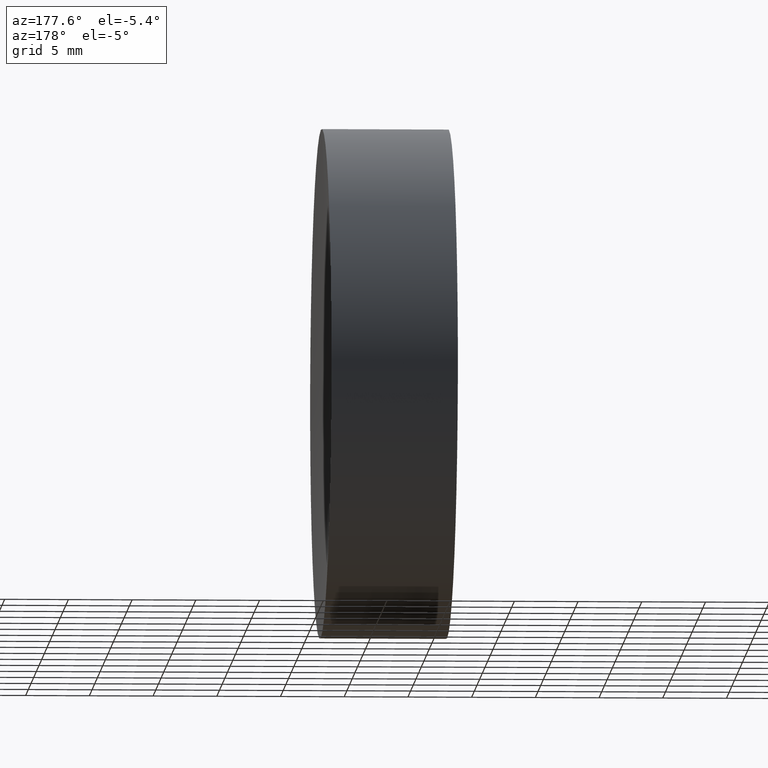
[diagram: clean part render]
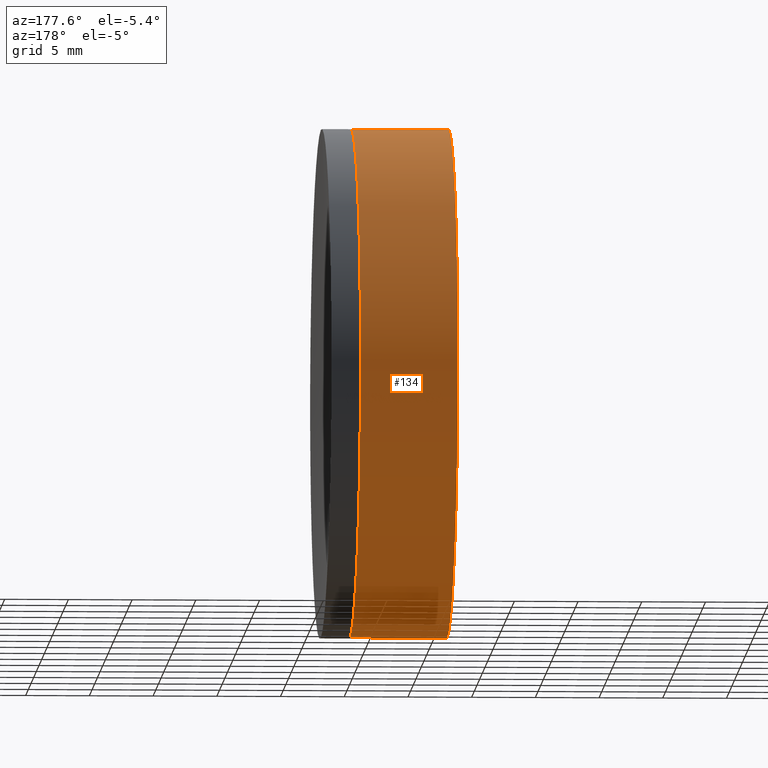
[diagram: same view with one face highlighted and labeled with its STEP entity id]
A machine part, auxiliary view. The second image highlights one B-rep face of the part: STEP entity #134.
In plain terms, the highlighted cylindrical surface (partial cylindrical patch) has radius 20 mm, axis along (-1, -0, 0).
Its self-contained STEP definition (entity closure, byte-faithful):
#8 = CYLINDRICAL_SURFACE ( 'NONE', #241, 20.00000000000004600 ) ;
#10 = ORIENTED_EDGE ( 'NONE', *, *, #252, .F. ) ;
#22 = CARTESIAN_POINT ( 'NONE',  ( -0.8160621761658076700, 2.449293598294712000E-015, -20.00000000000004600 ) ) ;
#30 = CARTESIAN_POINT ( 'NONE',  ( 243.5932381383219400, 0.0000000000000000000, 19.99999999999998200 ) ) ;
#33 = DIRECTION ( 'NONE',  ( -1.000000000000000000, -0.0000000000000000000, 1.836970198721029400E-016 ) ) ;
#42 = EDGE_CURVE ( 'NONE', #73, #250, #43, .T. ) ;
#43 = CIRCLE ( 'NONE', #334, 20.00000000000004600 ) ;
#47 = DIRECTION ( 'NONE',  ( -1.000000000000000000, -0.0000000000000000000, 1.836970198721029400E-016 ) ) ;
#61 = VECTOR ( 'NONE', #335, 1000.000000000000000 ) ;
#62 = EDGE_CURVE ( 'NONE', #73, #157, #90, .T. ) ;
#73 = VERTEX_POINT ( 'NONE', #180 ) ;
#81 = FACE_OUTER_BOUND ( 'NONE', #93, .T. ) ;
#90 = LINE ( 'NONE', #262, #288 ) ;
#93 = EDGE_LOOP ( 'NONE', ( #196, #109, #10, #265 ) ) ;
#109 = ORIENTED_EDGE ( 'NONE', *, *, #281, .T. ) ;
#114 = VERTEX_POINT ( 'NONE', #268 ) ;
#126 = DIRECTION ( 'NONE',  ( 1.843143693225353300E-016, 0.0000000000000000000, 1.000000000000000000 ) ) ;
#127 = DIRECTION ( 'NONE',  ( -1.000000000000000000, -0.0000000000000000000, 1.836970198721029400E-016 ) ) ;
#134 = ADVANCED_FACE ( 'NONE', ( #81 ), #8, .T. ) ;
#135 = CARTESIAN_POINT ( 'NONE',  ( 251.2286233649336100, 2.449293598294712000E-015, -20.00000000000009200 ) ) ;
#157 = VERTEX_POINT ( 'NONE', #30 ) ;
#166 = CIRCLE ( 'NONE', #269, 20.00000000000004600 ) ;
#174 = CARTESIAN_POINT ( 'NONE',  ( 251.2286233649336100, 0.0000000000000000000, -4.629985760850127900E-014 ) ) ;
#180 = CARTESIAN_POINT ( 'NONE',  ( 251.2286233649336100, 0.0000000000000000000, 20.00000000000000000 ) ) ;
#185 = CARTESIAN_POINT ( 'NONE',  ( 243.5932381383219400, 0.0000000000000000000, -4.489726009679723200E-014 ) ) ;
#196 = ORIENTED_EDGE ( 'NONE', *, *, #42, .T. ) ;
#198 = CARTESIAN_POINT ( 'NONE',  ( -0.8160621761658039000, 0.0000000000000000000, 0.0000000000000000000 ) ) ;
#233 = DIRECTION ( 'NONE',  ( 0.0000000000000000000, 0.0000000000000000000, 1.000000000000000000 ) ) ;
#241 = AXIS2_PLACEMENT_3D ( 'NONE', #198, #47, #126 ) ;
#250 = VERTEX_POINT ( 'NONE', #135 ) ;
#252 = EDGE_CURVE ( 'NONE', #157, #114, #166, .T. ) ;
#262 = CARTESIAN_POINT ( 'NONE',  ( -0.8160621761658002300, 0.0000000000000000000, 20.00000000000004600 ) ) ;
#265 = ORIENTED_EDGE ( 'NONE', *, *, #62, .F. ) ;
#268 = CARTESIAN_POINT ( 'NONE',  ( 243.5932381383219400, 2.449293598294710100E-015, -20.00000000000004600 ) ) ;
#269 = AXIS2_PLACEMENT_3D ( 'NONE', #185, #33, #233 ) ;
#281 = EDGE_CURVE ( 'NONE', #250, #114, #302, .T. ) ;
#288 = VECTOR ( 'NONE', #127, 1000.000000000000000 ) ;
#295 = DIRECTION ( 'NONE',  ( 0.0000000000000000000, 0.0000000000000000000, 1.000000000000000000 ) ) ;
#302 = LINE ( 'NONE', #22, #61 ) ;
#327 = DIRECTION ( 'NONE',  ( -1.000000000000000000, -0.0000000000000000000, 1.836970198721029400E-016 ) ) ;
#334 = AXIS2_PLACEMENT_3D ( 'NONE', #174, #327, #295 ) ;
#335 = DIRECTION ( 'NONE',  ( -1.000000000000000000, -0.0000000000000000000, 1.836970198721029400E-016 ) ) ;